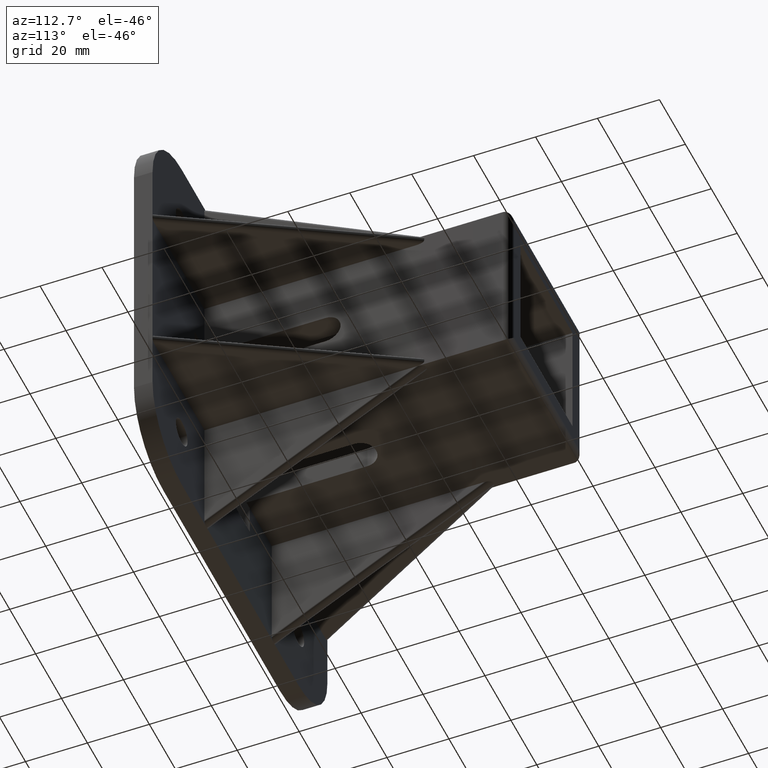
[diagram: clean part render]
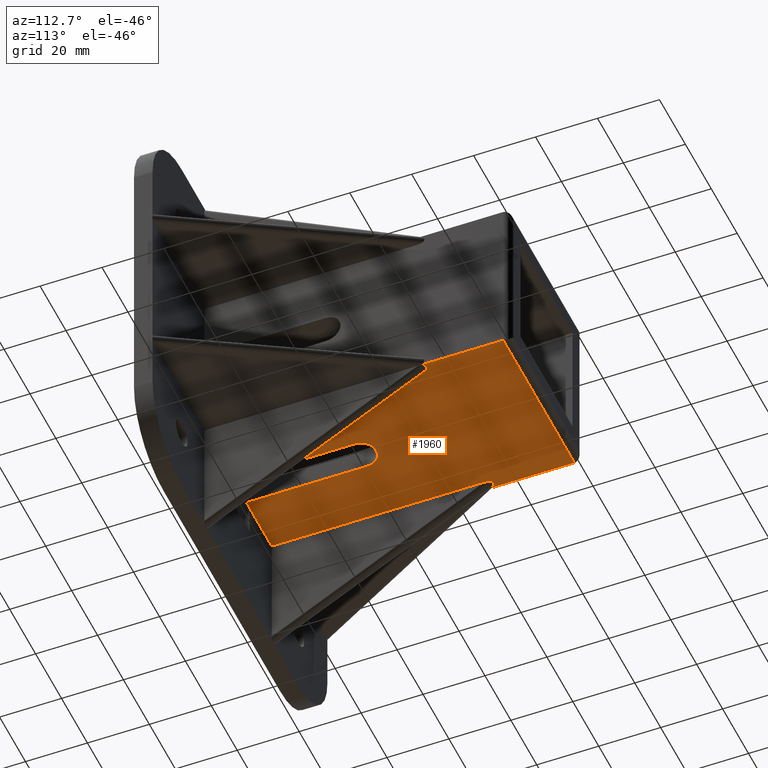
[diagram: same view with one face highlighted and labeled with its STEP entity id]
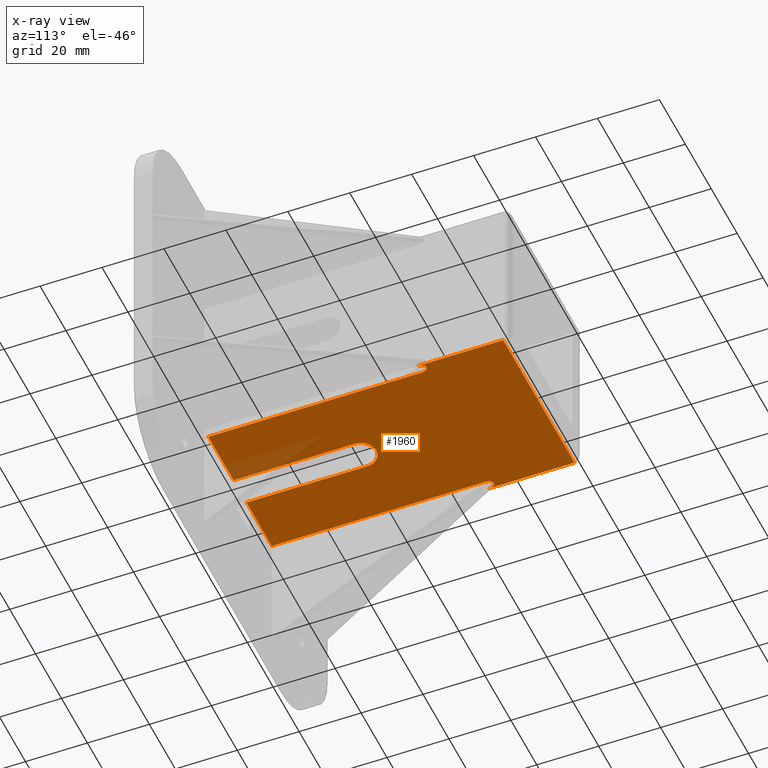
[diagram: x-ray of the same camera — body ghosted, the highlighted face saturated]
A machine part, auxiliary view. The second image highlights one B-rep face of the part: STEP entity #1960.
The next image is the same camera in x-ray: the body ghosted, the highlighted face saturated — about 5% of this face is hidden behind the body in this view.
In plain terms, the highlighted planar face has unit normal (0, 0, 1).
Its self-contained STEP definition (entity closure, byte-faithful):
#26=ELLIPSE('',#2092,2.44476992782616,1.20000000000029);
#27=ELLIPSE('',#2093,2.44476992782507,1.19999999999972);
#28=ELLIPSE('',#2094,2.44476992782453,1.19999999999947);
#29=ELLIPSE('',#2095,2.44476992782582,1.20000000000011);
#101=LINE('',#2926,#333);
#115=LINE('',#2959,#347);
#119=LINE('',#2971,#351);
#123=LINE('',#2979,#355);
#125=LINE('',#2984,#357);
#128=LINE('',#2988,#360);
#129=LINE('',#2990,#361);
#130=LINE('',#2994,#362);
#131=LINE('',#2997,#363);
#132=LINE('',#2999,#364);
#133=LINE('',#3003,#365);
#134=LINE('',#3006,#366);
#135=LINE('',#3007,#367);
#333=VECTOR('',#2323,27.9447699278255);
#347=VECTOR('',#2347,17.);
#351=VECTOR('',#2355,17.);
#355=VECTOR('',#2361,39.);
#357=VECTOR('',#2365,39.);
#360=VECTOR('',#2370,2.50000000000001);
#361=VECTOR('',#2371,68.5552300721745);
#362=VECTOR('',#2374,0.599999999999996);
#363=VECTOR('',#2377,55.);
#364=VECTOR('',#2378,27.9447699278255);
#365=VECTOR('',#2381,0.600000000000001);
#366=VECTOR('',#2384,68.5552300721745);
#367=VECTOR('',#2385,2.49999999999999);
#526=PLANE('',#2091);
#618=FACE_OUTER_BOUND('',#733,.T.);
#733=EDGE_LOOP('',(#1442,#1443,#1444,#1445,#1446,#1447,#1448,#1449,#1450,
#1451,#1452,#1453,#1454,#1455,#1456,#1457,#1458,#1459));
#847=CIRCLE('',#2096,5.);
#918=VERTEX_POINT('',#2923);
#919=VERTEX_POINT('',#2925);
#932=VERTEX_POINT('',#2956);
#933=VERTEX_POINT('',#2958);
#938=VERTEX_POINT('',#2968);
#939=VERTEX_POINT('',#2970);
#941=VERTEX_POINT('',#2976);
#942=VERTEX_POINT('',#2978);
#943=VERTEX_POINT('',#2982);
#944=VERTEX_POINT('',#2983);
#945=VERTEX_POINT('',#2989);
#946=VERTEX_POINT('',#2991);
#947=VERTEX_POINT('',#2993);
#948=VERTEX_POINT('',#2996);
#949=VERTEX_POINT('',#2998);
#950=VERTEX_POINT('',#3000);
#951=VERTEX_POINT('',#3002);
#952=VERTEX_POINT('',#3004);
#1105=EDGE_CURVE('',#918,#919,#101,.T.);
#1122=EDGE_CURVE('',#933,#932,#115,.T.);
#1128=EDGE_CURVE('',#939,#938,#119,.T.);
#1132=EDGE_CURVE('',#942,#941,#123,.T.);
#1134=EDGE_CURVE('',#943,#944,#125,.T.);
#1137=EDGE_CURVE('',#941,#939,#128,.T.);
#1138=EDGE_CURVE('',#945,#938,#129,.T.);
#1139=EDGE_CURVE('',#945,#946,#26,.T.);
#1140=EDGE_CURVE('',#946,#947,#130,.T.);
#1141=EDGE_CURVE('',#947,#919,#27,.T.);
#1142=EDGE_CURVE('',#918,#948,#131,.T.);
#1143=EDGE_CURVE('',#948,#949,#132,.T.);
#1144=EDGE_CURVE('',#949,#950,#28,.T.);
#1145=EDGE_CURVE('',#950,#951,#133,.T.);
#1146=EDGE_CURVE('',#951,#952,#29,.T.);
#1147=EDGE_CURVE('',#933,#952,#134,.T.);
#1148=EDGE_CURVE('',#943,#932,#135,.T.);
#1149=EDGE_CURVE('',#944,#942,#847,.T.);
#1442=ORIENTED_EDGE('',*,*,#1132,.T.);
#1443=ORIENTED_EDGE('',*,*,#1137,.T.);
#1444=ORIENTED_EDGE('',*,*,#1128,.T.);
#1445=ORIENTED_EDGE('',*,*,#1138,.F.);
#1446=ORIENTED_EDGE('',*,*,#1139,.T.);
#1447=ORIENTED_EDGE('',*,*,#1140,.T.);
#1448=ORIENTED_EDGE('',*,*,#1141,.T.);
#1449=ORIENTED_EDGE('',*,*,#1105,.F.);
#1450=ORIENTED_EDGE('',*,*,#1142,.T.);
#1451=ORIENTED_EDGE('',*,*,#1143,.T.);
#1452=ORIENTED_EDGE('',*,*,#1144,.T.);
#1453=ORIENTED_EDGE('',*,*,#1145,.T.);
#1454=ORIENTED_EDGE('',*,*,#1146,.T.);
#1455=ORIENTED_EDGE('',*,*,#1147,.F.);
#1456=ORIENTED_EDGE('',*,*,#1122,.T.);
#1457=ORIENTED_EDGE('',*,*,#1148,.F.);
#1458=ORIENTED_EDGE('',*,*,#1134,.T.);
#1459=ORIENTED_EDGE('',*,*,#1149,.T.);
#1960=ADVANCED_FACE('',(#618),#526,.F.);
#2091=AXIS2_PLACEMENT_3D('',#2987,#2368,#2369);
#2092=AXIS2_PLACEMENT_3D('',#2992,#2372,#2373);
#2093=AXIS2_PLACEMENT_3D('',#2995,#2375,#2376);
#2094=AXIS2_PLACEMENT_3D('',#3001,#2379,#2380);
#2095=AXIS2_PLACEMENT_3D('',#3005,#2382,#2383);
#2096=AXIS2_PLACEMENT_3D('',#3008,#2386,#2387);
#2323=DIRECTION('',(0.,-1.,0.));
#2347=DIRECTION('',(-1.,0.,0.));
#2355=DIRECTION('',(-1.,0.,0.));
#2361=DIRECTION('',(-9.6373526443156E-17,-1.,0.));
#2365=DIRECTION('',(-9.6373526443156E-17,1.,0.));
#2368=DIRECTION('center_axis',(0.,0.,1.));
#2369=DIRECTION('ref_axis',(1.,0.,0.));
#2370=DIRECTION('',(-1.,0.,0.));
#2371=DIRECTION('',(0.,-1.,0.));
#2372=DIRECTION('center_axis',(0.,0.,1.));
#2373=DIRECTION('ref_axis',(-1.41761878316894E-13,-1.,0.));
#2374=DIRECTION('',(-1.,0.,0.));
#2375=DIRECTION('center_axis',(0.,0.,1.));
#2376=DIRECTION('ref_axis',(-1.03406087652326E-13,-1.,0.));
#2377=DIRECTION('',(1.,0.,0.));
#2378=DIRECTION('',(0.,-1.,0.));
#2379=DIRECTION('center_axis',(0.,0.,1.));
#2380=DIRECTION('ref_axis',(2.21423905081589E-13,-1.,0.));
#2381=DIRECTION('',(-1.,0.,0.));
#2382=DIRECTION('center_axis',(0.,0.,1.));
#2383=DIRECTION('ref_axis',(7.0248700850779E-14,-1.,0.));
#2384=DIRECTION('',(0.,1.,0.));
#2385=DIRECTION('',(1.,0.,0.));
#2386=DIRECTION('center_axis',(0.,0.,1.));
#2387=DIRECTION('ref_axis',(-1.,0.,0.));
#2923=CARTESIAN_POINT('',(-27.5,102.5,-27.5));
#2925=CARTESIAN_POINT('',(-27.5,74.5552300721745,-27.5));
#2926=CARTESIAN_POINT('',(-27.5,105.,-27.5));
#2956=CARTESIAN_POINT('',(7.5,6.,-27.5));
#2958=CARTESIAN_POINT('',(24.5,6.,-27.5));
#2959=CARTESIAN_POINT('',(27.5,6.,-27.5));
#2968=CARTESIAN_POINT('',(-24.5,6.,-27.5));
#2970=CARTESIAN_POINT('',(-7.50000000000001,6.,-27.5));
#2971=CARTESIAN_POINT('',(27.5,6.,-27.5));
#2976=CARTESIAN_POINT('',(-5.,6.,-27.5));
#2978=CARTESIAN_POINT('',(-5.,45.,-27.5));
#2979=CARTESIAN_POINT('',(-5.,2.44921270764475E-15,-27.5));
#2982=CARTESIAN_POINT('',(5.,6.,-27.5));
#2983=CARTESIAN_POINT('',(5.,45.,-27.5));
#2984=CARTESIAN_POINT('',(5.,45.,-27.5));
#2987=CARTESIAN_POINT('Origin',(27.5,105.,-27.5));
#2988=CARTESIAN_POINT('',(27.5,6.,-27.5));
#2989=CARTESIAN_POINT('',(-24.5,74.5552300721745,-27.5));
#2990=CARTESIAN_POINT('',(-24.5,105.,-27.5));
#2991=CARTESIAN_POINT('',(-25.7,77.,-27.5));
#2992=CARTESIAN_POINT('Origin',(-25.7000000000003,74.5552300721738,-27.5));
#2993=CARTESIAN_POINT('',(-26.3,77.,-27.5));
#2994=CARTESIAN_POINT('',(27.5,77.,-27.5));
#2995=CARTESIAN_POINT('Origin',(-26.3000000000003,74.5552300721749,-27.5));
#2996=CARTESIAN_POINT('',(27.5,102.5,-27.5));
#2997=CARTESIAN_POINT('',(27.5,102.5,-27.5));
#2998=CARTESIAN_POINT('',(27.5,74.5552300721745,-27.5));
#2999=CARTESIAN_POINT('',(27.5,105.,-27.5));
#3000=CARTESIAN_POINT('',(26.3,77.,-27.5));
#3001=CARTESIAN_POINT('Origin',(26.3000000000005,74.5552300721755,-27.5));
#3002=CARTESIAN_POINT('',(25.7,77.,-27.5));
#3003=CARTESIAN_POINT('',(27.5,77.,-27.5));
#3004=CARTESIAN_POINT('',(24.5,74.5552300721745,-27.5));
#3005=CARTESIAN_POINT('Origin',(25.7000000000001,74.5552300721742,-27.5));
#3006=CARTESIAN_POINT('',(24.5,105.,-27.5));
#3007=CARTESIAN_POINT('',(27.5,6.00000000000001,-27.5));
#3008=CARTESIAN_POINT('Origin',(0.,45.,-27.5));